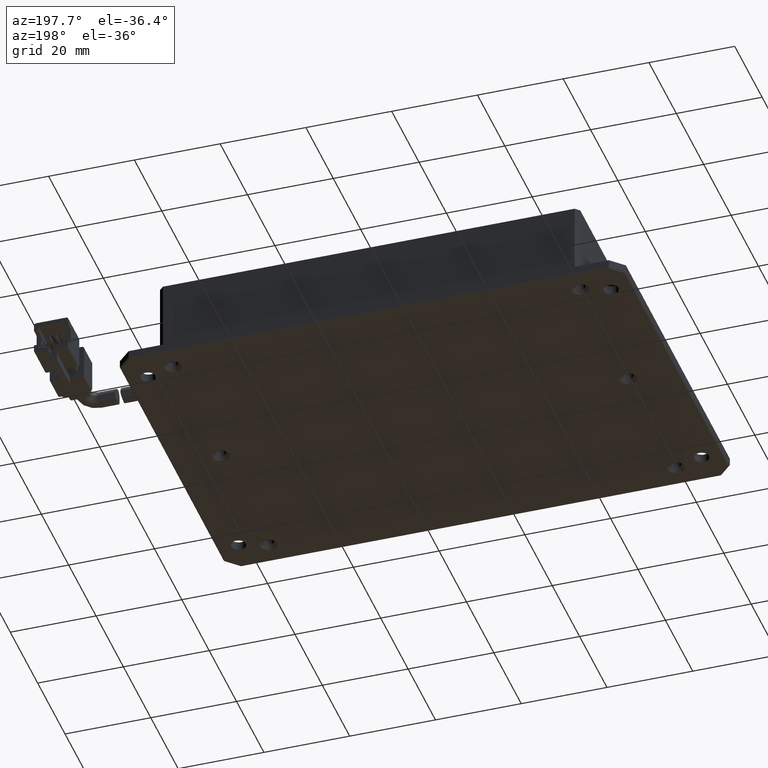
[diagram: clean part render]
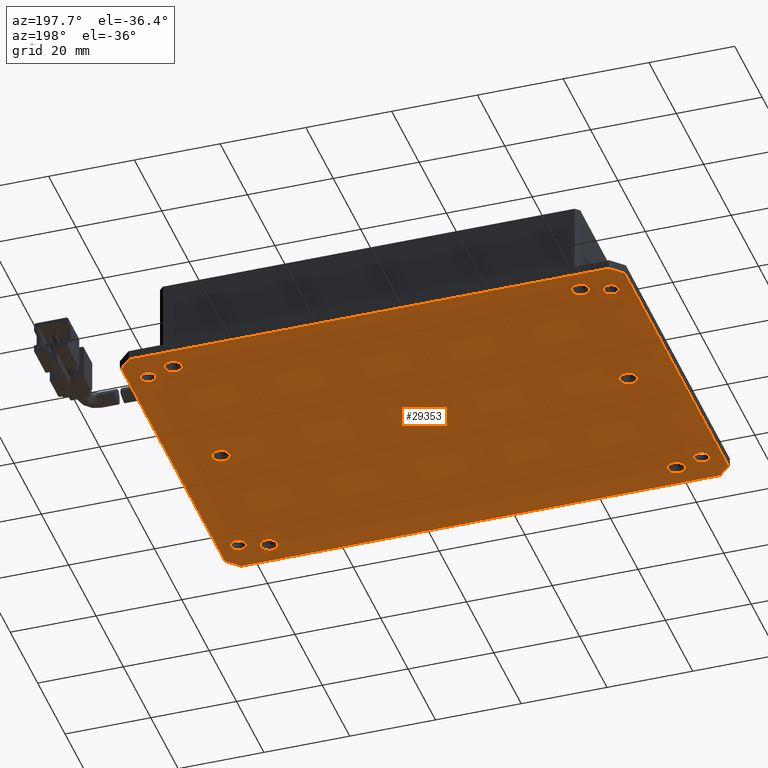
[diagram: same view with one face highlighted and labeled with its STEP entity id]
A machine part, auxiliary view. The second image highlights one B-rep face of the part: STEP entity #29353.
In plain terms, the highlighted planar face has unit normal (0, 0, 1).
Its self-contained STEP definition (entity closure, byte-faithful):
#12 = LINE ( 'NONE', #7839, #1285 ) ;
#32 = ORIENTED_EDGE ( 'NONE', *, *, #32801, .T. ) ;
#93 = DIRECTION ( 'NONE',  ( -0.0000000000000000000, -0.0000000000000000000, 1.000000000000000000 ) ) ;
#177 = CARTESIAN_POINT ( 'NONE',  ( -44.99847269950363700, 37.85299732722420200, -2.000000000004486600 ) ) ;
#266 = FACE_BOUND ( 'NONE', #27164, .T. ) ;
#341 = ORIENTED_EDGE ( 'NONE', *, *, #14478, .T. ) ;
#584 = AXIS2_PLACEMENT_3D ( 'NONE', #39273, #14647, #43432 ) ;
#779 = AXIS2_PLACEMENT_3D ( 'NONE', #36974, #12318, #41088 ) ;
#1285 = VECTOR ( 'NONE', #44910, 1000.000000000000000 ) ;
#1312 = CARTESIAN_POINT ( 'NONE',  ( -46.87420863079168500, -35.84700267277581500, -2.000000000004483500 ) ) ;
#1502 = EDGE_LOOP ( 'NONE', ( #17530, #9397 ) ) ;
#1533 = FACE_BOUND ( 'NONE', #4952, .T. ) ;
#1981 = ORIENTED_EDGE ( 'NONE', *, *, #35351, .T. ) ;
#2229 = AXIS2_PLACEMENT_3D ( 'NONE', #9307, #38099, #13470 ) ;
#2252 = EDGE_CURVE ( 'NONE', #28741, #14764, #35427, .T. ) ;
#2318 = CARTESIAN_POINT ( 'NONE',  ( -49.69847269950364000, 45.85299732722419500, -2.000000000004485300 ) ) ;
#2462 = CARTESIAN_POINT ( 'NONE',  ( -46.87420863079169900, -35.84700267277580800, -2.000000000004484400 ) ) ;
#2695 = EDGE_LOOP ( 'NONE', ( #53085, #31701 ) ) ;
#2816 = FACE_BOUND ( 'NONE', #43392, .T. ) ;
#2838 = VERTEX_POINT ( 'NONE', #2462 ) ;
#2866 = CARTESIAN_POINT ( 'NONE',  ( -46.74847269950363700, 37.85299732722420200, -2.000000000004486600 ) ) ;
#3011 = VERTEX_POINT ( 'NONE', #42366 ) ;
#3050 = CARTESIAN_POINT ( 'NONE',  ( -38.49847269950364400, -30.14700267277580500, -2.000000000014035000 ) ) ;
#3264 = CARTESIAN_POINT ( 'NONE',  ( 63.00152730049636300, -28.14700267277580500, -2.000000000004486600 ) ) ;
#3428 = CARTESIAN_POINT ( 'NONE',  ( 63.00152730049636300, 37.85299732722420200, -2.000000000004486600 ) ) ;
#3563 = ORIENTED_EDGE ( 'NONE', *, *, #19213, .T. ) ;
#3671 = CARTESIAN_POINT ( 'NONE',  ( -43.24847269950363000, 37.85299732722420200, -2.000000000004486600 ) ) ;
#3738 = AXIS2_PLACEMENT_3D ( 'NONE', #31247, #6541, #35377 ) ;
#4285 = VERTEX_POINT ( 'NONE', #37088 ) ;
#4288 = DIRECTION ( 'NONE',  ( -1.000000000000000000, 0.0000000000000000000, 0.0000000000000000000 ) ) ;
#4605 = CARTESIAN_POINT ( 'NONE',  ( -36.49847269962505400, 4.852997327224197300, -2.000000000014035000 ) ) ;
#4726 = CARTESIAN_POINT ( 'NONE',  ( -36.49847269962505400, -30.14700267277580500, -2.000000000014035000 ) ) ;
#4952 = EDGE_LOOP ( 'NONE', ( #37978, #23920 ) ) ;
#5836 = CARTESIAN_POINT ( 'NONE',  ( 61.25152730049637000, -28.14700267277580500, -2.000000000004486600 ) ) ;
#6382 = EDGE_CURVE ( 'NONE', #35513, #3011, #33781, .T. ) ;
#6503 = DIRECTION ( 'NONE',  ( -0.0000000000000000000, -0.0000000000000000000, 1.000000000000000000 ) ) ;
#6541 = DIRECTION ( 'NONE',  ( -0.0000000000000000000, -0.0000000000000000000, 1.000000000000000000 ) ) ;
#6862 = CARTESIAN_POINT ( 'NONE',  ( 56.50152730049636300, 4.852997327224190200, -2.000000000014035000 ) ) ;
#6938 = LINE ( 'NONE', #8763, #27585 ) ;
#6994 = ORIENTED_EDGE ( 'NONE', *, *, #6382, .T. ) ;
#7152 = CARTESIAN_POINT ( 'NONE',  ( -38.49847269950364400, 39.85299732722418800, -2.000000000014035000 ) ) ;
#7174 = DIRECTION ( 'NONE',  ( -1.000000000000000000, 0.0000000000000000000, 0.0000000000000000000 ) ) ;
#7186 = AXIS2_PLACEMENT_3D ( 'NONE', #46764, #22155, #50912 ) ;
#7264 = VECTOR ( 'NONE', #30113, 1000.000000000000000 ) ;
#7309 = CARTESIAN_POINT ( 'NONE',  ( 56.50152730049636300, 4.852997327224190200, -2.000000000014035000 ) ) ;
#7350 = CARTESIAN_POINT ( 'NONE',  ( -49.69847269950366800, 42.72873325851220700, -2.000000000004493700 ) ) ;
#7403 = DIRECTION ( 'NONE',  ( -1.000000000000000000, 0.0000000000000000000, 0.0000000000000000000 ) ) ;
#7574 = DIRECTION ( 'NONE',  ( -1.000000000000000000, 0.0000000000000000000, 0.0000000000000000000 ) ) ;
#7754 = VERTEX_POINT ( 'NONE', #4605 ) ;
#7839 = CARTESIAN_POINT ( 'NONE',  ( 68.00152730049634900, -35.84700267277581500, -2.000000000004485300 ) ) ;
#8763 = CARTESIAN_POINT ( 'NONE',  ( 67.70152730049636600, -33.02273860406386800, -2.000000000004487100 ) ) ;
#9307 = CARTESIAN_POINT ( 'NONE',  ( -38.49847269950364400, 39.85299732722418800, -2.000000000014035000 ) ) ;
#9397 = ORIENTED_EDGE ( 'NONE', *, *, #44180, .T. ) ;
#11018 = DIRECTION ( 'NONE',  ( -1.000000000000000000, 0.0000000000000000000, 0.0000000000000000000 ) ) ;
#11100 = AXIS2_PLACEMENT_3D ( 'NONE', #13703, #42467, #17858 ) ;
#11177 = EDGE_CURVE ( 'NONE', #3011, #30042, #32904, .T. ) ;
#11184 = AXIS2_PLACEMENT_3D ( 'NONE', #3050, #31841, #7174 ) ;
#11204 = FACE_BOUND ( 'NONE', #43222, .T. ) ;
#11300 = DIRECTION ( 'NONE',  ( -1.000000000000000000, 0.0000000000000000000, 0.0000000000000000000 ) ) ;
#11452 = DIRECTION ( 'NONE',  ( -1.000000000000000000, 0.0000000000000000000, 0.0000000000000000000 ) ) ;
#11611 = CARTESIAN_POINT ( 'NONE',  ( 68.00152730049634900, 45.85299732722419500, -2.000000000004485300 ) ) ;
#12093 = ORIENTED_EDGE ( 'NONE', *, *, #2252, .T. ) ;
#12318 = DIRECTION ( 'NONE',  ( -0.0000000000000000000, -0.0000000000000000000, 1.000000000000000000 ) ) ;
#12507 = FACE_BOUND ( 'NONE', #49137, .T. ) ;
#12620 = EDGE_CURVE ( 'NONE', #28315, #44056, #16709, .T. ) ;
#12745 = CIRCLE ( 'NONE', #11184, 1.999999999878585100 ) ;
#12943 = DIRECTION ( 'NONE',  ( -0.7071067811865482400, -0.7071067811865469100, -8.686402570749231900E-016 ) ) ;
#13071 = CARTESIAN_POINT ( 'NONE',  ( 68.00152730049634900, 45.55299732722419700, -2.000000000004485300 ) ) ;
#13470 = DIRECTION ( 'NONE',  ( -1.000000000000000000, 0.0000000000000000000, 0.0000000000000000000 ) ) ;
#13476 = AXIS2_PLACEMENT_3D ( 'NONE', #3264, #32045, #7403 ) ;
#13666 = VERTEX_POINT ( 'NONE', #31695 ) ;
#13703 = CARTESIAN_POINT ( 'NONE',  ( -38.49847269950364400, 4.852997327224197300, -2.000000000014035000 ) ) ;
#14478 = EDGE_CURVE ( 'NONE', #30042, #29877, #41572, .T. ) ;
#14564 = CARTESIAN_POINT ( 'NONE',  ( -49.69847269950364000, -33.02273860406386800, -2.000000000004485300 ) ) ;
#14647 = DIRECTION ( 'NONE',  ( -0.0000000000000000000, -0.0000000000000000000, 1.000000000000000000 ) ) ;
#14764 = VERTEX_POINT ( 'NONE', #3671 ) ;
#14854 = AXIS2_PLACEMENT_3D ( 'NONE', #7152, #35980, #11300 ) ;
#14956 = VERTEX_POINT ( 'NONE', #4726 ) ;
#15039 = CARTESIAN_POINT ( 'NONE',  ( 64.75152730049634900, 37.85299732722420200, -2.000000000004486600 ) ) ;
#15104 = VERTEX_POINT ( 'NONE', #22588 ) ;
#15640 = EDGE_LOOP ( 'NONE', ( #38356, #50177, #25852, #6994, #41747, #341, #24219, #22677 ) ) ;
#15722 = VERTEX_POINT ( 'NONE', #14564 ) ;
#15795 = DIRECTION ( 'NONE',  ( 1.000000000000000000, -5.551115123125781500E-017, 0.0000000000000000000 ) ) ;
#15969 = CARTESIAN_POINT ( 'NONE',  ( -36.49847269962505400, 39.85299732722418800, -2.000000000014035000 ) ) ;
#16550 = VERTEX_POINT ( 'NONE', #30969 ) ;
#16709 = CIRCLE ( 'NONE', #24764, 1.750000000000001600 ) ;
#17156 = AXIS2_PLACEMENT_3D ( 'NONE', #18241, #47027, #22410 ) ;
#17272 = CARTESIAN_POINT ( 'NONE',  ( -38.49847269950364400, -30.14700267277580500, -2.000000000014035000 ) ) ;
#17530 = ORIENTED_EDGE ( 'NONE', *, *, #43325, .T. ) ;
#17790 = CARTESIAN_POINT ( 'NONE',  ( 54.50152730053137200, 4.852997327224190200, -2.000000000014035000 ) ) ;
#17793 = CARTESIAN_POINT ( 'NONE',  ( 58.50152730046134800, 4.852997327224190200, -2.000000000014035000 ) ) ;
#17858 = DIRECTION ( 'NONE',  ( -1.000000000000000000, 0.0000000000000000000, 0.0000000000000000000 ) ) ;
#17971 = CARTESIAN_POINT ( 'NONE',  ( 67.70152730049636600, 45.85299732722419500, -2.000000000004485300 ) ) ;
#17997 = EDGE_CURVE ( 'NONE', #23479, #38641, #29630, .T. ) ;
#18171 = CARTESIAN_POINT ( 'NONE',  ( 67.70152730049636600, 42.72873325851226400, -2.000000000004486200 ) ) ;
#18241 = CARTESIAN_POINT ( 'NONE',  ( -44.99847269950363700, 37.85299732722420200, -2.000000000004486600 ) ) ;
#18346 = AXIS2_PLACEMENT_3D ( 'NONE', #11611, #40412, #15795 ) ;
#18348 = CIRCLE ( 'NONE', #11100, 1.999999999878585100 ) ;
#18915 = DIRECTION ( 'NONE',  ( 5.551115123125781500E-017, 1.000000000000000000, 0.0000000000000000000 ) ) ;
#19049 = VERTEX_POINT ( 'NONE', #21731 ) ;
#19213 = EDGE_CURVE ( 'NONE', #42274, #50491, #40189, .T. ) ;
#19271 = DIRECTION ( 'NONE',  ( 0.7071067811865487900, -0.7071067811865463500, -8.686402570749252600E-016 ) ) ;
#19614 = CARTESIAN_POINT ( 'NONE',  ( 56.50152730049636300, 39.85299732722418800, -2.000000000014035000 ) ) ;
#19747 = PLANE ( 'NONE',  #18346 ) ;
#19830 = EDGE_LOOP ( 'NONE', ( #47568, #23483 ) ) ;
#19910 = DIRECTION ( 'NONE',  ( -0.0000000000000000000, -0.0000000000000000000, 1.000000000000000000 ) ) ;
#20403 = AXIS2_PLACEMENT_3D ( 'NONE', #19614, #48385, #23813 ) ;
#20856 = CIRCLE ( 'NONE', #28335, 1.999999999964988000 ) ;
#21441 = DIRECTION ( 'NONE',  ( -1.000000000000000000, 0.0000000000000000000, 0.0000000000000000000 ) ) ;
#21451 = EDGE_LOOP ( 'NONE', ( #53138, #22238 ) ) ;
#21731 = CARTESIAN_POINT ( 'NONE',  ( 58.50152730046134800, 39.85299732722418800, -2.000000000014035000 ) ) ;
#22036 = VECTOR ( 'NONE', #19271, 999.9999999999998900 ) ;
#22043 = VERTEX_POINT ( 'NONE', #15969 ) ;
#22155 = DIRECTION ( 'NONE',  ( -0.0000000000000000000, -0.0000000000000000000, 1.000000000000000000 ) ) ;
#22214 = FACE_BOUND ( 'NONE', #31441, .T. ) ;
#22238 = ORIENTED_EDGE ( 'NONE', *, *, #12620, .T. ) ;
#22378 = ORIENTED_EDGE ( 'NONE', *, *, #17997, .T. ) ;
#22410 = DIRECTION ( 'NONE',  ( -1.000000000000000000, 0.0000000000000000000, 0.0000000000000000000 ) ) ;
#22415 = EDGE_CURVE ( 'NONE', #50491, #42274, #43912, .T. ) ;
#22451 = AXIS2_PLACEMENT_3D ( 'NONE', #177, #28983, #4288 ) ;
#22578 = VECTOR ( 'NONE', #36178, 1000.000000000000100 ) ;
#22588 = CARTESIAN_POINT ( 'NONE',  ( -49.69847269950364000, 42.72873325851223600, -2.000000000004487500 ) ) ;
#22677 = ORIENTED_EDGE ( 'NONE', *, *, #45721, .T. ) ;
#22777 = CARTESIAN_POINT ( 'NONE',  ( 63.00152730049636300, 37.85299732722420200, -2.000000000004486600 ) ) ;
#22909 = VERTEX_POINT ( 'NONE', #47174 ) ;
#22946 = EDGE_CURVE ( 'NONE', #15722, #15104, #52785, .T. ) ;
#23280 = EDGE_CURVE ( 'NONE', #29877, #16550, #6938, .T. ) ;
#23437 = VERTEX_POINT ( 'NONE', #17793 ) ;
#23479 = VERTEX_POINT ( 'NONE', #5836 ) ;
#23483 = ORIENTED_EDGE ( 'NONE', *, *, #39693, .T. ) ;
#23503 = FACE_BOUND ( 'NONE', #1502, .T. ) ;
#23813 = DIRECTION ( 'NONE',  ( -1.000000000000000000, 0.0000000000000000000, 0.0000000000000000000 ) ) ;
#23920 = ORIENTED_EDGE ( 'NONE', *, *, #24720, .T. ) ;
#24041 = CARTESIAN_POINT ( 'NONE',  ( 64.75152730049634900, -28.14700267277580500, -2.000000000004486600 ) ) ;
#24186 = CIRCLE ( 'NONE', #29674, 1.999999999878585100 ) ;
#24219 = ORIENTED_EDGE ( 'NONE', *, *, #23280, .T. ) ;
#24337 = AXIS2_PLACEMENT_3D ( 'NONE', #31207, #6503, #35336 ) ;
#24720 = EDGE_CURVE ( 'NONE', #23437, #45485, #20856, .T. ) ;
#24764 = AXIS2_PLACEMENT_3D ( 'NONE', #24801, #93, #28910 ) ;
#24801 = CARTESIAN_POINT ( 'NONE',  ( -44.99847269950363700, -28.14700267277579800, -2.000000000004486600 ) ) ;
#24975 = CARTESIAN_POINT ( 'NONE',  ( -46.87420863079172800, 45.55299732722418300, -2.000000000004487100 ) ) ;
#25852 = ORIENTED_EDGE ( 'NONE', *, *, #27135, .T. ) ;
#26325 = EDGE_CURVE ( 'NONE', #2838, #15722, #38836, .T. ) ;
#26418 = CIRCLE ( 'NONE', #45886, 1.749999999999994700 ) ;
#26895 = DIRECTION ( 'NONE',  ( -1.000000000000000000, 0.0000000000000000000, 0.0000000000000000000 ) ) ;
#27135 = EDGE_CURVE ( 'NONE', #15104, #35513, #28332, .T. ) ;
#27164 = EDGE_LOOP ( 'NONE', ( #32521, #46773 ) ) ;
#27585 = VECTOR ( 'NONE', #12943, 999.9999999999998900 ) ;
#27604 = EDGE_CURVE ( 'NONE', #45485, #23437, #31427, .T. ) ;
#28315 = VERTEX_POINT ( 'NONE', #49535 ) ;
#28332 = LINE ( 'NONE', #7350, #22578 ) ;
#28335 = AXIS2_PLACEMENT_3D ( 'NONE', #6862, #35690, #11018 ) ;
#28741 = VERTEX_POINT ( 'NONE', #2866 ) ;
#28910 = DIRECTION ( 'NONE',  ( -1.000000000000000000, 0.0000000000000000000, 0.0000000000000000000 ) ) ;
#28983 = DIRECTION ( 'NONE',  ( -0.0000000000000000000, -0.0000000000000000000, 1.000000000000000000 ) ) ;
#29021 = EDGE_CURVE ( 'NONE', #31126, #14956, #24186, .T. ) ;
#29353 = ADVANCED_FACE ( 'NONE', ( #45339, #23503, #2816, #12507, #1533, #44035, #33090, #22214, #11204, #266, #42751 ), #19747, .F. ) ;
#29630 = CIRCLE ( 'NONE', #13476, 1.749999999999994700 ) ;
#29674 = AXIS2_PLACEMENT_3D ( 'NONE', #17272, #46073, #21441 ) ;
#29677 = CARTESIAN_POINT ( 'NONE',  ( 67.70152730049636600, -33.02273860406387500, -2.000000000004486200 ) ) ;
#29877 = VERTEX_POINT ( 'NONE', #29677 ) ;
#30042 = VERTEX_POINT ( 'NONE', #18171 ) ;
#30113 = DIRECTION ( 'NONE',  ( -0.7071067811865470200, 0.7071067811865481300, -4.343201285374565700E-016 ) ) ;
#30969 = CARTESIAN_POINT ( 'NONE',  ( 64.87726323178442600, -35.84700267277580800, -2.000000000004486600 ) ) ;
#31011 = EDGE_CURVE ( 'NONE', #14764, #28741, #38299, .T. ) ;
#31126 = VERTEX_POINT ( 'NONE', #39243 ) ;
#31207 = CARTESIAN_POINT ( 'NONE',  ( 56.50152730049636300, -30.14700267277581200, -2.000000000014035000 ) ) ;
#31247 = CARTESIAN_POINT ( 'NONE',  ( -38.49847269950364400, 4.852997327224197300, -2.000000000014035000 ) ) ;
#31427 = CIRCLE ( 'NONE', #52997, 1.999999999964988000 ) ;
#31441 = EDGE_LOOP ( 'NONE', ( #12093, #48456 ) ) ;
#31484 = CARTESIAN_POINT ( 'NONE',  ( 64.87726323178444000, 45.55299732722419700, -2.000000000004485300 ) ) ;
#31695 = CARTESIAN_POINT ( 'NONE',  ( -40.49847269938222600, 4.852997327224197300, -2.000000000014035000 ) ) ;
#31701 = ORIENTED_EDGE ( 'NONE', *, *, #53216, .T. ) ;
#31841 = DIRECTION ( 'NONE',  ( -0.0000000000000000000, -0.0000000000000000000, 1.000000000000000000 ) ) ;
#31918 = VECTOR ( 'NONE', #46748, 1000.000000000000000 ) ;
#32045 = DIRECTION ( 'NONE',  ( -0.0000000000000000000, -0.0000000000000000000, 1.000000000000000000 ) ) ;
#32210 = DIRECTION ( 'NONE',  ( -0.0000000000000000000, -0.0000000000000000000, 1.000000000000000000 ) ) ;
#32521 = ORIENTED_EDGE ( 'NONE', *, *, #38611, .T. ) ;
#32801 = EDGE_CURVE ( 'NONE', #22909, #22043, #44965, .T. ) ;
#32824 = EDGE_CURVE ( 'NONE', #52840, #19049, #34028, .T. ) ;
#32904 = LINE ( 'NONE', #31484, #22036 ) ;
#33090 = FACE_BOUND ( 'NONE', #21451, .T. ) ;
#33344 = VERTEX_POINT ( 'NONE', #15039 ) ;
#33781 = LINE ( 'NONE', #13071, #45351 ) ;
#34028 = CIRCLE ( 'NONE', #20403, 1.999999999964988000 ) ;
#34736 = AXIS2_PLACEMENT_3D ( 'NONE', #22777, #51548, #26895 ) ;
#34790 = EDGE_CURVE ( 'NONE', #22043, #22909, #35603, .T. ) ;
#35336 = DIRECTION ( 'NONE',  ( -1.000000000000000000, 0.0000000000000000000, 0.0000000000000000000 ) ) ;
#35351 = EDGE_CURVE ( 'NONE', #38641, #23479, #43181, .T. ) ;
#35377 = DIRECTION ( 'NONE',  ( -1.000000000000000000, 0.0000000000000000000, 0.0000000000000000000 ) ) ;
#35427 = CIRCLE ( 'NONE', #22451, 1.750000000000001600 ) ;
#35513 = VERTEX_POINT ( 'NONE', #24975 ) ;
#35603 = CIRCLE ( 'NONE', #2229, 1.999999999878585100 ) ;
#35690 = DIRECTION ( 'NONE',  ( -0.0000000000000000000, -0.0000000000000000000, 1.000000000000000000 ) ) ;
#35741 = EDGE_CURVE ( 'NONE', #33344, #4285, #43802, .T. ) ;
#35980 = DIRECTION ( 'NONE',  ( -0.0000000000000000000, -0.0000000000000000000, 1.000000000000000000 ) ) ;
#36140 = DIRECTION ( 'NONE',  ( -0.0000000000000000000, -0.0000000000000000000, 1.000000000000000000 ) ) ;
#36178 = DIRECTION ( 'NONE',  ( 0.7071067811865474600, 0.7071067811865474600, 0.0000000000000000000 ) ) ;
#36658 = EDGE_CURVE ( 'NONE', #44056, #28315, #50617, .T. ) ;
#36974 = CARTESIAN_POINT ( 'NONE',  ( 56.50152730049636300, 39.85299732722418800, -2.000000000014035000 ) ) ;
#37088 = CARTESIAN_POINT ( 'NONE',  ( 61.25152730049637000, 37.85299732722420200, -2.000000000004486600 ) ) ;
#37474 = CARTESIAN_POINT ( 'NONE',  ( 54.50152730053137200, 39.85299732722418800, -2.000000000014035000 ) ) ;
#37978 = ORIENTED_EDGE ( 'NONE', *, *, #27604, .T. ) ;
#38099 = DIRECTION ( 'NONE',  ( -0.0000000000000000000, -0.0000000000000000000, 1.000000000000000000 ) ) ;
#38299 = CIRCLE ( 'NONE', #17156, 1.750000000000001600 ) ;
#38356 = ORIENTED_EDGE ( 'NONE', *, *, #26325, .T. ) ;
#38611 = EDGE_CURVE ( 'NONE', #4285, #33344, #26418, .T. ) ;
#38641 = VERTEX_POINT ( 'NONE', #24041 ) ;
#38836 = LINE ( 'NONE', #1312, #7264 ) ;
#39243 = CARTESIAN_POINT ( 'NONE',  ( -40.49847269938222600, -30.14700267277580500, -2.000000000014035000 ) ) ;
#39273 = CARTESIAN_POINT ( 'NONE',  ( 56.50152730049636300, -30.14700267277581200, -2.000000000014035000 ) ) ;
#39693 = EDGE_CURVE ( 'NONE', #19049, #52840, #42477, .T. ) ;
#40189 = CIRCLE ( 'NONE', #24337, 1.999999999964988000 ) ;
#40412 = DIRECTION ( 'NONE',  ( 0.0000000000000000000, 0.0000000000000000000, 1.000000000000000000 ) ) ;
#41088 = DIRECTION ( 'NONE',  ( -1.000000000000000000, 0.0000000000000000000, 0.0000000000000000000 ) ) ;
#41572 = LINE ( 'NONE', #17971, #31918 ) ;
#41747 = ORIENTED_EDGE ( 'NONE', *, *, #11177, .T. ) ;
#41789 = VECTOR ( 'NONE', #18915, 1000.000000000000000 ) ;
#42274 = VERTEX_POINT ( 'NONE', #43126 ) ;
#42366 = CARTESIAN_POINT ( 'NONE',  ( 64.87726323178444000, 45.55299732722419700, -2.000000000004485300 ) ) ;
#42467 = DIRECTION ( 'NONE',  ( -0.0000000000000000000, -0.0000000000000000000, 1.000000000000000000 ) ) ;
#42477 = CIRCLE ( 'NONE', #779, 1.999999999964988000 ) ;
#42751 = FACE_OUTER_BOUND ( 'NONE', #15640, .T. ) ;
#43126 = CARTESIAN_POINT ( 'NONE',  ( 54.50152730053137200, -30.14700267277581200, -2.000000000014035000 ) ) ;
#43181 = CIRCLE ( 'NONE', #43310, 1.749999999999994700 ) ;
#43222 = EDGE_LOOP ( 'NONE', ( #22378, #1981 ) ) ;
#43310 = AXIS2_PLACEMENT_3D ( 'NONE', #44520, #19910, #48701 ) ;
#43325 = EDGE_CURVE ( 'NONE', #13666, #7754, #46146, .T. ) ;
#43392 = EDGE_LOOP ( 'NONE', ( #32, #51212 ) ) ;
#43432 = DIRECTION ( 'NONE',  ( -1.000000000000000000, 0.0000000000000000000, 0.0000000000000000000 ) ) ;
#43802 = CIRCLE ( 'NONE', #34736, 1.749999999999994700 ) ;
#43912 = CIRCLE ( 'NONE', #584, 1.999999999964988000 ) ;
#43984 = CARTESIAN_POINT ( 'NONE',  ( 58.50152730046134800, -30.14700267277581200, -2.000000000014035000 ) ) ;
#44035 = FACE_BOUND ( 'NONE', #19830, .T. ) ;
#44056 = VERTEX_POINT ( 'NONE', #45191 ) ;
#44180 = EDGE_CURVE ( 'NONE', #7754, #13666, #18348, .T. ) ;
#44520 = CARTESIAN_POINT ( 'NONE',  ( 63.00152730049636300, -28.14700267277580500, -2.000000000004486600 ) ) ;
#44910 = DIRECTION ( 'NONE',  ( -1.000000000000000000, 5.551115123125781500E-017, 0.0000000000000000000 ) ) ;
#44965 = CIRCLE ( 'NONE', #14854, 1.999999999878585100 ) ;
#45191 = CARTESIAN_POINT ( 'NONE',  ( -46.74847269950363700, -28.14700267277579800, -2.000000000004486600 ) ) ;
#45339 = FACE_BOUND ( 'NONE', #2695, .T. ) ;
#45351 = VECTOR ( 'NONE', #46005, 1000.000000000000000 ) ;
#45485 = VERTEX_POINT ( 'NONE', #17790 ) ;
#45721 = EDGE_CURVE ( 'NONE', #16550, #2838, #12, .T. ) ;
#45886 = AXIS2_PLACEMENT_3D ( 'NONE', #3428, #32210, #7574 ) ;
#46005 = DIRECTION ( 'NONE',  ( 1.000000000000000000, -5.551115123125781500E-017, -0.0000000000000000000 ) ) ;
#46073 = DIRECTION ( 'NONE',  ( -0.0000000000000000000, -0.0000000000000000000, 1.000000000000000000 ) ) ;
#46146 = CIRCLE ( 'NONE', #3738, 1.999999999878585100 ) ;
#46748 = DIRECTION ( 'NONE',  ( -5.551115123125781500E-017, -1.000000000000000000, -0.0000000000000000000 ) ) ;
#46764 = CARTESIAN_POINT ( 'NONE',  ( -44.99847269950363700, -28.14700267277579800, -2.000000000004486600 ) ) ;
#46773 = ORIENTED_EDGE ( 'NONE', *, *, #35741, .T. ) ;
#47027 = DIRECTION ( 'NONE',  ( -0.0000000000000000000, -0.0000000000000000000, 1.000000000000000000 ) ) ;
#47174 = CARTESIAN_POINT ( 'NONE',  ( -40.49847269938222600, 39.85299732722418800, -2.000000000014035000 ) ) ;
#47568 = ORIENTED_EDGE ( 'NONE', *, *, #32824, .T. ) ;
#48385 = DIRECTION ( 'NONE',  ( -0.0000000000000000000, -0.0000000000000000000, 1.000000000000000000 ) ) ;
#48456 = ORIENTED_EDGE ( 'NONE', *, *, #31011, .T. ) ;
#48654 = ORIENTED_EDGE ( 'NONE', *, *, #22415, .T. ) ;
#48701 = DIRECTION ( 'NONE',  ( -1.000000000000000000, 0.0000000000000000000, 0.0000000000000000000 ) ) ;
#49137 = EDGE_LOOP ( 'NONE', ( #3563, #48654 ) ) ;
#49535 = CARTESIAN_POINT ( 'NONE',  ( -43.24847269950363000, -28.14700267277579800, -2.000000000004486600 ) ) ;
#50177 = ORIENTED_EDGE ( 'NONE', *, *, #22946, .T. ) ;
#50491 = VERTEX_POINT ( 'NONE', #43984 ) ;
#50617 = CIRCLE ( 'NONE', #7186, 1.750000000000001600 ) ;
#50912 = DIRECTION ( 'NONE',  ( -1.000000000000000000, 0.0000000000000000000, 0.0000000000000000000 ) ) ;
#51212 = ORIENTED_EDGE ( 'NONE', *, *, #34790, .T. ) ;
#51548 = DIRECTION ( 'NONE',  ( -0.0000000000000000000, -0.0000000000000000000, 1.000000000000000000 ) ) ;
#52785 = LINE ( 'NONE', #2318, #41789 ) ;
#52840 = VERTEX_POINT ( 'NONE', #37474 ) ;
#52997 = AXIS2_PLACEMENT_3D ( 'NONE', #7309, #36140, #11452 ) ;
#53085 = ORIENTED_EDGE ( 'NONE', *, *, #29021, .T. ) ;
#53138 = ORIENTED_EDGE ( 'NONE', *, *, #36658, .T. ) ;
#53216 = EDGE_CURVE ( 'NONE', #14956, #31126, #12745, .T. ) ;